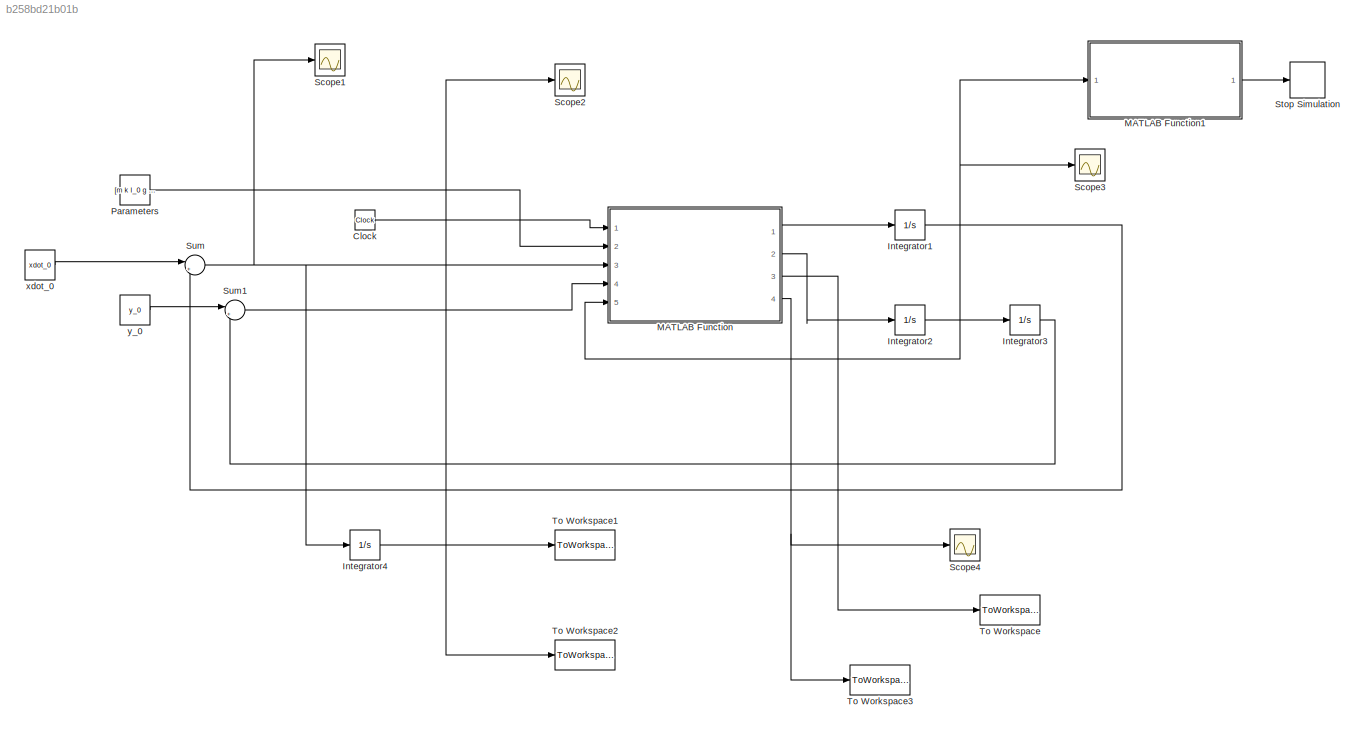
MODEL slx_b258bd21b01b
KIND model
CONFIG AbsTol = auto
CONFIG FixedStep = auto
CONFIG MaxStep = 5e-3
CONFIG MinStep = auto
CONFIG RelTol = auto
CONFIG SampleTimeConstraint = Unconstrained
CONFIG Solver = VariableStepAuto
CONFIG SolverMode = Auto
CONFIG SolverName = VariableStepAuto
CONFIG StartTime = 0.0
CONFIG StopTime = 5
BLOCK [Clock] Clock
BLOCK [Integrator] Integrator1
  Ports = [1, 1]
BLOCK [Integrator] Integrator2
  Ports = [1, 1]
BLOCK [Integrator] Integrator3
  Ports = [1, 1]
BLOCK [Integrator] Integrator4
  Ports = [1, 1]
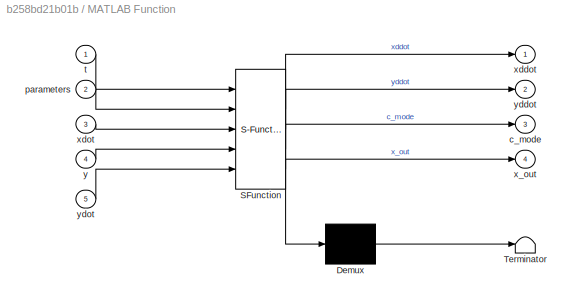
BLOCK [SubSystem] MATLAB Function
  ErrorFcn = Stateflow.Translate.translate
  PermitHierarchicalResolution = ExplicitOnly
  Ports = [5, 4]
  RequestExecContextInheritance = off
  SFBlockType = MATLAB Function
  TreatAsAtomicUnit = on
  Variant = off
BLOCK [Demux] MATLAB Function/ Demux 
  Outputs = 1
  Ports = [1, 1]
BLOCK [S-Function] MATLAB Function/ SFunction 
  EnableBusSupport = on
  FunctionName = sf_sfun
  PortCounts = [5 5]
  Ports = [5, 5]
  SFunctionDeploymentMode = off
  Tag = Stateflow S-Function spm_running_1_apex 2
BLOCK [Terminator] MATLAB Function/ Terminator 
BLOCK [Outport] MATLAB Function/c_mode
  IconDisplay = Port number
  Port = 3
BLOCK [Inport] MATLAB Function/parameters
  IconDisplay = Port number
  Port = 2
BLOCK [Inport] MATLAB Function/t
  IconDisplay = Port number
BLOCK [Outport] MATLAB Function/x_out
  IconDisplay = Port number
  Port = 4
BLOCK [Outport] MATLAB Function/xddot
  IconDisplay = Port number
BLOCK [Inport] MATLAB Function/xdot
  IconDisplay = Port number
  Port = 3
BLOCK [Inport] MATLAB Function/y
  IconDisplay = Port number
  Port = 4
BLOCK [Outport] MATLAB Function/yddot
  IconDisplay = Port number
  Port = 2
BLOCK [Inport] MATLAB Function/ydot
  IconDisplay = Port number
  Port = 5
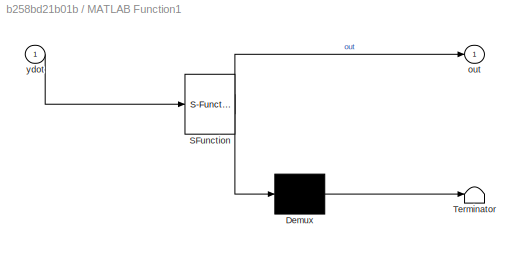
BLOCK [SubSystem] MATLAB Function1
  ErrorFcn = Stateflow.Translate.translate
  PermitHierarchicalResolution = ExplicitOnly
  Ports = [1, 1]
  RequestExecContextInheritance = off
  SFBlockType = MATLAB Function
  TreatAsAtomicUnit = on
  Variant = off
BLOCK [Demux] MATLAB Function1/ Demux 
  Outputs = 1
  Ports = [1, 1]
BLOCK [S-Function] MATLAB Function1/ SFunction 
  EnableBusSupport = on
  FunctionName = sf_sfun
  PortCounts = [1 2]
  Ports = [1, 2]
  SFunctionDeploymentMode = off
  Tag = Stateflow S-Function spm_running_1_apex 1
BLOCK [Terminator] MATLAB Function1/ Terminator 
BLOCK [Outport] MATLAB Function1/out
  IconDisplay = Port number
BLOCK [Inport] MATLAB Function1/ydot
  IconDisplay = Port number
BLOCK [Constant] Parameters
  Value = [m k l_0 g alpha_0]
BLOCK [Scope] Scope1
  Ports = [1]
  ScopeSpecificationString = Simulink.scopes.TimeScopeBlockCfg('CurrentConfiguration', extmgr.ConfigurationSet(extmgr.Configuration('Core','General UI',true),extmgr.Configuration('Core','Source UI',true),extmgr.Configuration('Sources','WiredSimulink',true,'DataLoggingVariableName','ScopeData1'),extmgr.Configuration('Visuals','Time Domain',true,'SerializedDisplays',{struct('MinYLimReal','4.9107','MaxYLimReal','5.23732','YLabel...<+1356ch>
BLOCK [Scope] Scope2
  Ports = [1]
  ScopeSpecificationString = Simulink.scopes.TimeScopeBlockCfg('CurrentConfiguration', extmgr.ConfigurationSet(extmgr.Configuration('Core','General UI',true),extmgr.Configuration('Core','Source UI',true),extmgr.Configuration('Sources','WiredSimulink',true,'DataLoggingVariableName','ScopeData2'),extmgr.Configuration('Visuals','Time Domain',true,'SerializedDisplays',{struct('MinYLimReal','0.81378','MaxYLimReal','1.1318','YLabel...<+1386ch>
BLOCK [Scope] Scope3
  Ports = [1]
  ScopeSpecificationString = Simulink.scopes.TimeScopeBlockCfg('CurrentConfiguration', extmgr.ConfigurationSet(extmgr.Configuration('Core','General UI',true),extmgr.Configuration('Core','Source UI',true),extmgr.Configuration('Sources','WiredSimulink',true,'DataLoggingVariableName','ScopeData1'),extmgr.Configuration('Visuals','Time Domain',true,'SerializedDisplays',{struct('MinYLimReal','-2.08997','MaxYLimReal','1.88081','YLab...<+1399ch>
BLOCK [Scope] Scope4
  Ports = [1]
  ScopeSpecificationString = Simulink.scopes.TimeScopeBlockCfg('CurrentConfiguration', extmgr.ConfigurationSet(extmgr.Configuration('Core','General UI',true),extmgr.Configuration('Core','Source UI',true),extmgr.Configuration('Sources','WiredSimulink',true,'DataLoggingVariableName','ScopeData1'),extmgr.Configuration('Visuals','Time Domain',true,'SerializedDisplays',{struct('MinYLimReal','-0.36035','MaxYLimReal','0.65494','YLab...<+1409ch>
BLOCK [Stop] Stop Simulation
BLOCK [Sum] Sum
  IconShape = round
  InputSameDT = off
  Inputs = |++
  OutDataTypeStr = Inherit: Inherit via internal rule
  Ports = [2, 1]
  SaturateOnIntegerOverflow = off
BLOCK [Sum] Sum1
  IconShape = round
  InputSameDT = off
  Inputs = |++
  OutDataTypeStr = Inherit: Inherit via internal rule
  Ports = [2, 1]
  SaturateOnIntegerOverflow = off
BLOCK [ToWorkspace] To Workspace
  FixptAsFi = on
  MaxDataPoints = inf
  Ports = [1]
  SampleTime = -1
  Save2DSignal = 3-D array (concatenate along third dimension)
  SaveFormat = Timeseries
  VariableName = ForS
BLOCK [ToWorkspace] To Workspace1
  FixptAsFi = on
  MaxDataPoints = inf
  Ports = [1]
  SampleTime = -1
  Save2DSignal = 3-D array (concatenate along third dimension)
  SaveFormat = Timeseries
  VariableName = X
BLOCK [ToWorkspace] To Workspace2
  FixptAsFi = on
  MaxDataPoints = inf
  Ports = [1]
  SampleTime = -1
  Save2DSignal = 3-D array (concatenate along third dimension)
  SaveFormat = Timeseries
  VariableName = Y
BLOCK [ToWorkspace] To Workspace3
  FixptAsFi = on
  MaxDataPoints = inf
  Ports = [1]
  SampleTime = -1
  Save2DSignal = 3-D array (concatenate along third dimension)
  SaveFormat = Timeseries
  VariableName = deltaX
BLOCK [Constant] xdot_0
  Value = xdot_0
BLOCK [Constant] y_0
  Value = y_0
LINE Clock:1 -> MATLAB Function:1
LINE Integrator1:1 -> Sum:2
NET Integrator2:1 -> Integrator3:1, MATLAB Function1:1, MATLAB Function:5, Scope3:1
LINE Integrator3:1 -> Sum1:2
LINE Integrator4:1 -> To Workspace1:1
LINE MATLAB Function1:1 -> Stop Simulation:1
LINE MATLAB Function:1 -> Integrator1:1
LINE MATLAB Function:2 -> Integrator2:1
LINE MATLAB Function:3 -> To Workspace:1
NET MATLAB Function:4 -> Scope4:1, To Workspace3:1
LINE Parameters:1 -> MATLAB Function:2
NET Sum1:1 -> MATLAB Function:4, Scope2:1, To Workspace2:1
NET Sum:1 -> Integrator4:1, MATLAB Function:3, Scope1:1
LINE xdot_0:1 -> Sum:1
LINE y_0:1 -> Sum1:1
note: NET lines group one-source signal fan-out (src -> all destinations, sorted); 1:1 wires keep LINE
CHART MATLAB Function1 states=1 transitions=1
  STATE_LABEL 'eML_blk_kernel()'
  STATE_LABEL 'SCRIPT:\nfunction out  = fcn(ydot)\n%#codegen\npersistent Y_DOT;\npersistent count;\n\nif(isempty(Y_DOT))\n    Y_DOT = [0.0 0.0];\nend\n\nif(isempty(count))\n    count = 0;\nend\n\nY_DOT(2) = ydot;\nchange_of_sign = find(diff(sign(Y_DOT)));\n\nif(isempty(change_of_sign))\n    change_of_sign = 0;\nend\n\nif change_of_sign(1) == 1\n    count = count + 1;\nend\nY_DOT(1) = ydot;\n\nout = 0;\nif count >= 5\n    out = 1;\nend\n\n\n\n\n\n...<+2ch>'
CHART MATLAB Function states=1 transitions=1
  STATE_LABEL 'eML_blk_kernel()'
  STATE_LABEL 'SCRIPT:\nfunction [xddot, yddot, c_mode, x_out] = fcn(t, parameters, xdot, y, ydot)\n%#codegen\nm = parameters(1);\nk = parameters(2);\nl_0 = parameters(3);\ng = parameters(4);\nalpha_0 = parameters(5);\n\n\n\npersistent mode;\npersistent x;\npersistent time;\n\nif isempty(mode) \n    mode = 0;\nend\n\nif isempty(x) \n    x = -l_0*cos(alpha_0);\nend\n\nif isempty(time) \n    time = 0;\nend\n\nl = sqrt(x.^2+y.^2);\nif mode ==...<+387ch>'
